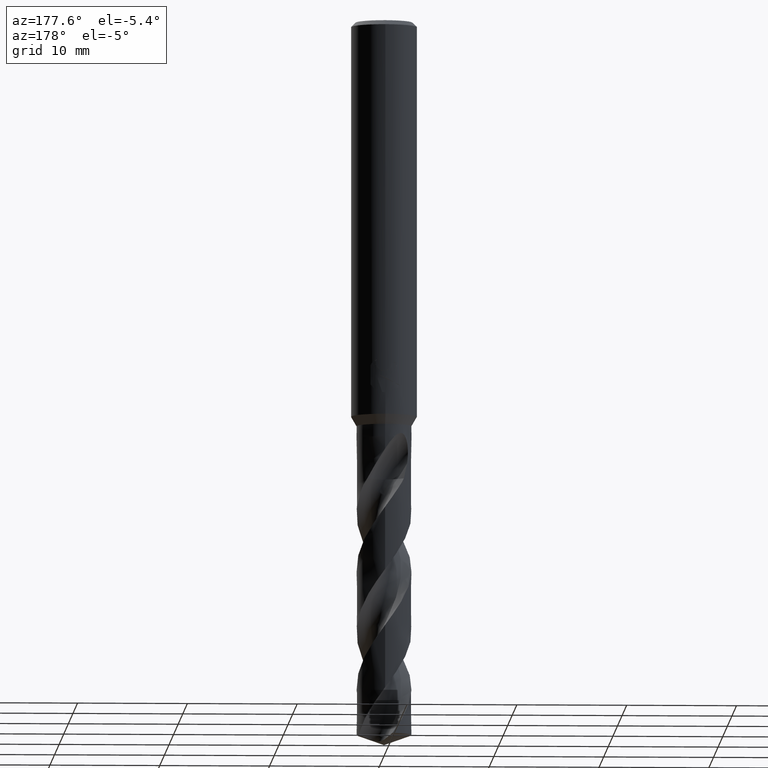
[diagram: clean part render]
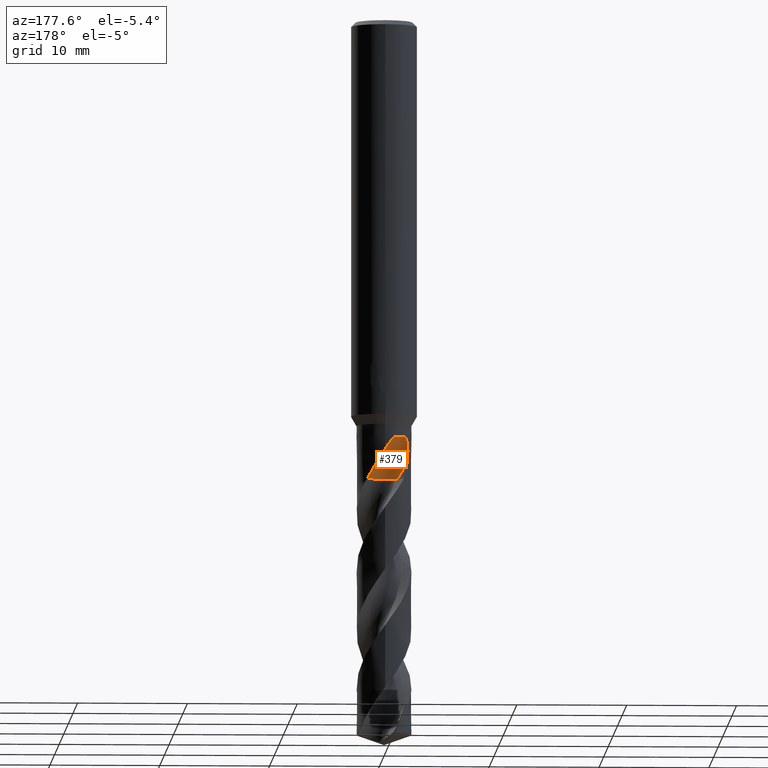
[diagram: same view with one face highlighted and labeled with its STEP entity id]
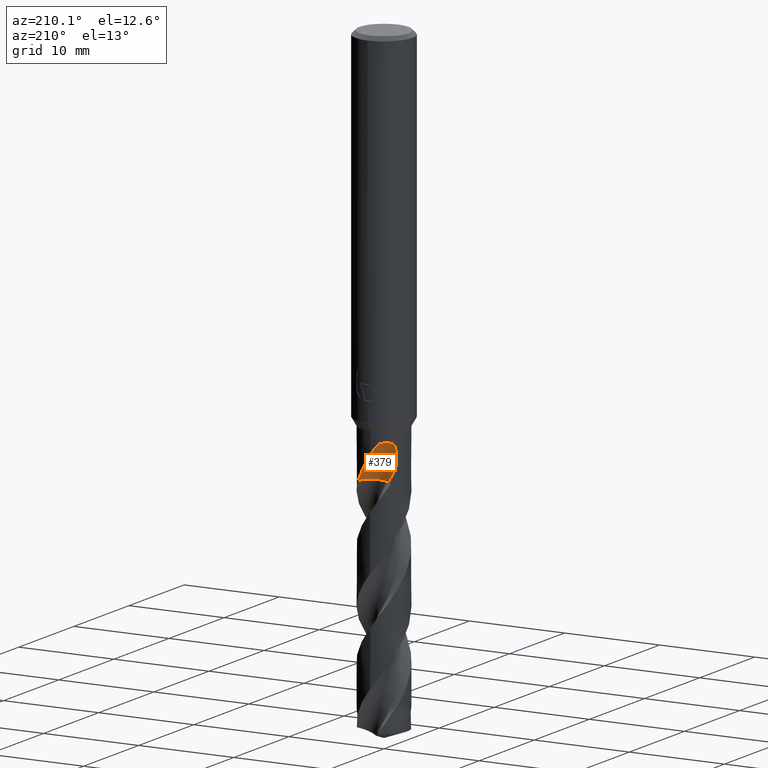
[diagram: same view with one face highlighted and labeled with its STEP entity id]
A machine part, auxiliary view. The second image highlights one B-rep face of the part: STEP entity #379.
A second angle (auxiliary view) of the same face is appended — the face is thin or edge-on in the first view.
In plain terms, the highlighted face is a SurfaceOfRevolution surface.
Its self-contained STEP definition (entity closure, byte-faithful):
#283=EDGE_CURVE('',#439,#661,#775,.T.);
#357=VERTEX_POINT('',#857);
#367=EDGE_CURVE('',#589,#631,#868,.T.);
#379=ADVANCED_FACE('',(#881),#882,.F.);
#431=VERTEX_POINT('',#939);
#439=VERTEX_POINT('',#948);
#507=EDGE_CURVE('',#631,#723,#1022,.T.);
#525=EDGE_CURVE('',#723,#661,#1041,.T.);
#589=VERTEX_POINT('',#1112);
#631=VERTEX_POINT('',#1160);
#637=EDGE_CURVE('',#357,#431,#1167,.T.);
#661=VERTEX_POINT('',#1191);
#701=EDGE_CURVE('',#431,#439,#1233,.T.);
#715=EDGE_CURVE('',#589,#357,#1248,.T.);
#723=VERTEX_POINT('',#1256);
#775=B_SPLINE_CURVE_WITH_KNOTS('',3,(#1560,#1561,#1562,#1563,#1564,#1565,#1566,#1567),.UNSPECIFIED.,.F.,.F.,(4,2,2,4),(0.0,0.466804786851938,1.12021701218288,1.74699842426996),.UNSPECIFIED.);
#857=CARTESIAN_POINT('',(-7.41226847575829E-013,2.4999041622737,-39.1275630436533));
#868=CIRCLE('',#2160,1.66666667);
#881=FACE_OUTER_BOUND('',#2348,.T.);
#882=SURFACE_OF_REVOLUTION('',#2349,#2350);
#939=CARTESIAN_POINT('',(-0.854254278690824,2.34941474357731,-38.0));
#948=CARTESIAN_POINT('',(-1.89294965054159,1.63286301645744,-38.0));
#1022=CIRCLE('',#2857,1.66666667);
#1041=CIRCLE('',#2976,10.8631497660768);
#1112=CARTESIAN_POINT('',(1.59301279645432,1.9266240155434,-41.785));
#1160=CARTESIAN_POINT('',(-0.207397086478386,0.762943119617117,-41.785));
#1167=B_SPLINE_CURVE_WITH_KNOTS('',3,(#4019,#4020,#4021,#4022,#4023,#4024,#4025,#4026,#4027,#4028,#4029,#4030,#4031,#4032),.UNSPECIFIED.,.F.,.F.,(4,2,2,2,2,2,4),(0.0,1.22487134503151,1.89367045895574,2.49942314968389,3.20314412049295,4.04846175271032,4.48661916354227),.UNSPECIFIED.);
#1191=CARTESIAN_POINT('',(-2.03401822218082,1.45338036163872,-40.4161889313329));
#1233=B_SPLINE_CURVE_WITH_KNOTS('',3,(#4921,#4922,#4923,#4924,#4925,#4926,#4927,#4928,#4929,#4930,#4931,#4932),.UNSPECIFIED.,.F.,.F.,(4,2,2,2,2,4),(0.0,0.546610759441123,1.04428614259583,1.54337661247951,1.87291098858658,2.21744017525971),.UNSPECIFIED.);
#1248=B_SPLINE_CURVE_WITH_KNOTS('',3,(#5049,#5050,#5051,#5052,#5053,#5054,#5055,#5056,#5057,#5058,#5059,#5060,#5061,#5062),.UNSPECIFIED.,.F.,.F.,(4,2,2,2,2,2,4),(0.0,1.22487134503151,1.89367045895574,2.49942314968389,3.20314412049295,4.04846175271032,4.48661916354227),.UNSPECIFIED.);
#1256=CARTESIAN_POINT('',(-1.17851130426389,1.23815536573611,-41.785));
#1560=CARTESIAN_POINT('',(-1.89294965054159,1.63286301645744,-38.0));
#1561=CARTESIAN_POINT('',(-1.95470844159128,1.56126782423688,-38.1235792730907));
#1562=CARTESIAN_POINT('',(-2.00344577584956,1.49656610404442,-38.277223858844));
#1563=CARTESIAN_POINT('',(-2.09117261224026,1.37271526928276,-38.7006381012966));
#1564=CARTESIAN_POINT('',(-2.12042170302936,1.32414080810256,-39.0000700500356));
#1565=CARTESIAN_POINT('',(-2.12488832539141,1.31696518674969,-39.6560132978575));
#1566=CARTESIAN_POINT('',(-2.10400949258269,1.35542445368482,-40.0181090060009));
#1567=CARTESIAN_POINT('',(-2.03401822218082,1.45338036163873,-40.4161889313329));
#2160=AXIS2_PLACEMENT_3D('',#5285,#5286,#5287);
#2348=EDGE_LOOP('',(#5307,#5308,#5309,#5310,#5311,#5312,#5313));
#2349=(B_SPLINE_CURVE(3,(#5315,#5316,#5317,#5318,#5319,#5320,#5321,#5322,#5323),.UNSPECIFIED.,.F.,.F.)B_SPLINE_CURVE_WITH_KNOTS((4,1,3,1,4),(-2.85638247206691,-2.55360067527894,-2.25081887849097,-1.948037081703,-1.64525528491502),.UNSPECIFIED.)RATIONAL_B_SPLINE_CURVE((1.09167681646615,1.03055893882205,0.969441061177949,1.03055893882205,1.09167681646615,1.03055893882205,0.969441061177949,1.03055893882205,1.09167681646615))BOUNDED_CURVE()REPRESENTATION_ITEM('')GEOMETRIC_REPRESENTATION_ITEM()CURVE());
#2350=AXIS1_PLACEMENT('',#5330,#5331);
#2857=AXIS2_PLACEMENT_3D('',#5489,#5490,#5491);
#2976=AXIS2_PLACEMENT_3D('',#5507,#5508,#5509);
#4019=CARTESIAN_POINT('',(1.59301279645432,1.9266240155434,-41.785));
#4020=CARTESIAN_POINT('',(1.42810890895895,2.06297173670078,-41.4372686424366));
#4021=CARTESIAN_POINT('',(1.23850396307914,2.18417752815992,-41.1130710216752));
#4022=CARTESIAN_POINT('',(0.907887514823849,2.33273979380253,-40.5714825716518));
#4023=CARTESIAN_POINT('',(0.788916400666736,2.37547539181747,-40.3809353995761));
#4024=CARTESIAN_POINT('',(0.558604370020951,2.43934441173361,-40.0120901649774));
#4025=CARTESIAN_POINT('',(0.448291618326909,2.46190905945036,-39.8355107915732));
#4026=CARTESIAN_POINT('',(0.209513281842545,2.49447463007089,-39.4549417195726));
#4027=CARTESIAN_POINT('',(0.0790527645682199,2.50212001513107,-39.2479728388036));
#4028=CARTESIAN_POINT('',(-0.210665456619868,2.49602519936687,-38.8052023996043));
#4029=CARTESIAN_POINT('',(-0.382438157885559,2.4771760560147,-38.5532640287168));
#4030=CARTESIAN_POINT('',(-0.651860622151975,2.41526150425023,-38.2153659264753));
#4031=CARTESIAN_POINT('',(-0.751088758238558,2.38692643364792,-38.1008277311453));
#4032=CARTESIAN_POINT('',(-0.854254278690818,2.34941474357731,-38.0));
#4921=CARTESIAN_POINT('',(-0.774469384444656,2.5499,-38.0));
#4922=CARTESIAN_POINT('',(-0.82926258056644,2.37613046128544,-38.0));
#4923=CARTESIAN_POINT('',(-0.914555981602334,2.21479010620971,-37.9999999999918));
#4924=CARTESIAN_POINT('',(-1.13840373266714,1.94923688572363,-37.9999999999918));
#4925=CARTESIAN_POINT('',(-1.26768540000004,1.84588000671945,-38.0000000000004));
#4926=CARTESIAN_POINT('',(-1.56239769409015,1.69444166742258,-38.0000000000004));
#4927=CARTESIAN_POINT('',(-1.72262856503769,1.64921326820745,-38.0));
#4928=CARTESIAN_POINT('',(-1.99712116742587,1.62284830577957,-38.0));
#4929=CARTESIAN_POINT('',(-2.10708537188683,1.62528608225171,-38.0));
#4930=CARTESIAN_POINT('',(-2.32967953527967,1.65393297399047,-38.0));
#4931=CARTESIAN_POINT('',(-2.44156370348641,1.68112742310305,-38.0));
#4932=CARTESIAN_POINT('',(-2.5499,1.71902286515707,-38.0));
#5049=CARTESIAN_POINT('',(1.59301279645432,1.9266240155434,-41.785));
#5050=CARTESIAN_POINT('',(1.42810890895895,2.06297173670078,-41.4372686424366));
#5051=CARTESIAN_POINT('',(1.23850396307914,2.18417752815992,-41.1130710216752));
#5052=CARTESIAN_POINT('',(0.907887514823849,2.33273979380253,-40.5714825716518));
#5053=CARTESIAN_POINT('',(0.788916400666736,2.37547539181747,-40.3809353995761));
#5054=CARTESIAN_POINT('',(0.558604370020951,2.43934441173361,-40.0120901649774));
#5055=CARTESIAN_POINT('',(0.448291618326909,2.46190905945036,-39.8355107915732));
#5056=CARTESIAN_POINT('',(0.209513281842545,2.49447463007089,-39.4549417195726));
#5057=CARTESIAN_POINT('',(0.0790527645682199,2.50212001513107,-39.2479728388036));
#5058=CARTESIAN_POINT('',(-0.210665456619868,2.49602519936687,-38.8052023996043));
#5059=CARTESIAN_POINT('',(-0.382438157885559,2.4771760560147,-38.5532640287168));
#5060=CARTESIAN_POINT('',(-0.651860622151975,2.41526150425023,-38.2153659264753));
#5061=CARTESIAN_POINT('',(-0.751088758238558,2.38692643364792,-38.1008277311453));
#5062=CARTESIAN_POINT('',(-0.854254278690818,2.34941474357731,-38.0));
#5285=CARTESIAN_POINT('',(1.29099536216776E-005,2.41665376004638,-41.785));
#5286=DIRECTION('',(0.0,0.0,-1.0));
#5287=DIRECTION('',(0.707099035171964,0.707114527116278,0.0));
#5307=ORIENTED_EDGE('',*,*,#283,.F.);
#5308=ORIENTED_EDGE('',*,*,#701,.F.);
#5309=ORIENTED_EDGE('',*,*,#637,.F.);
#5310=ORIENTED_EDGE('',*,*,#715,.F.);
#5311=ORIENTED_EDGE('',*,*,#367,.T.);
#5312=ORIENTED_EDGE('',*,*,#507,.T.);
#5313=ORIENTED_EDGE('',*,*,#525,.T.);
#5315=CARTESIAN_POINT('',(-1.17851130426389,1.23815536573611,-41.785));
#5316=CARTESIAN_POINT('',(-0.947680022390862,1.00731902654411,-41.785));
#5317=CARTESIAN_POINT('',(-0.347453466837279,0.679318901852546,-41.785));
#5318=CARTESIAN_POINT('',(0.332755661973483,0.751232328080929,-41.785));
#5319=CARTESIAN_POINT('',(0.634613816932614,0.87553096229458,-41.785));
#5320=CARTESIAN_POINT('',(0.936471971891745,0.999829596508231,-41.785));
#5321=CARTESIAN_POINT('',(1.47008802854005,1.42774302686128,-41.785));
#5322=CARTESIAN_POINT('',(1.66531050606904,2.08329179244386,-41.785));
#5323=CARTESIAN_POINT('',(1.666665228612,2.4097372869901,-41.785));
#5330=CARTESIAN_POINT('',(-0.847468803066169,12.08333335,-42.3146680019164));
#5331=DIRECTION('',(0.847998304005088,-0.0,0.52999894000318));
#5489=CARTESIAN_POINT('',(1.29099536216776E-005,2.41665376004638,-41.785));
#5490=DIRECTION('',(0.0,0.0,-1.0));
#5491=DIRECTION('',(0.707099035171964,0.707114527116278,0.0));
#5507=CARTESIAN_POINT('',(-0.847468803066169,12.08333335,-42.3146680019164));
#5508=DIRECTION('',(-0.847998304005088,0.0,-0.52999894000318));
#5509=DIRECTION('',(-0.0535598119257102,-0.994880693201691,0.0856956990811363));